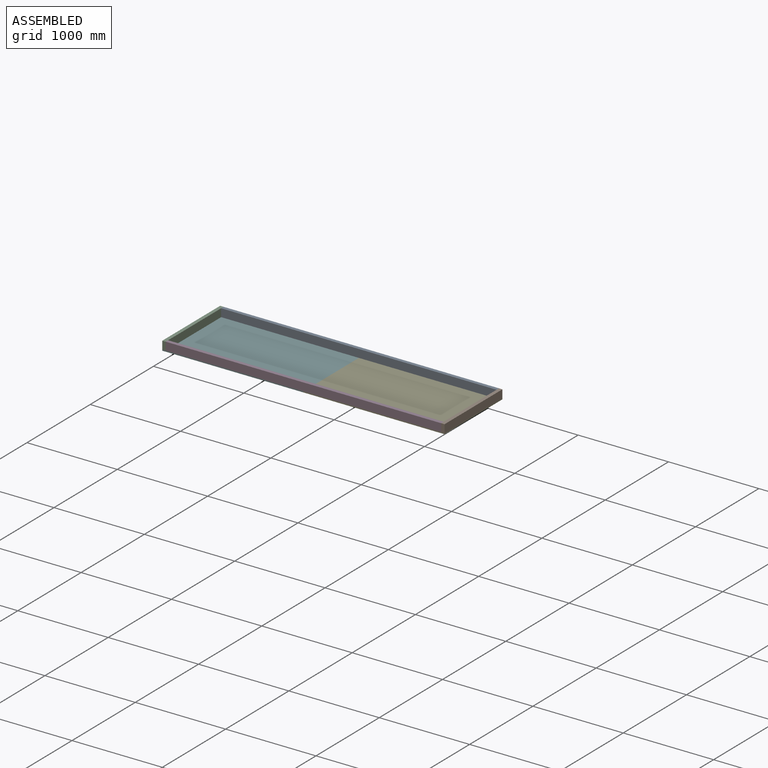
[diagram: assembled view]
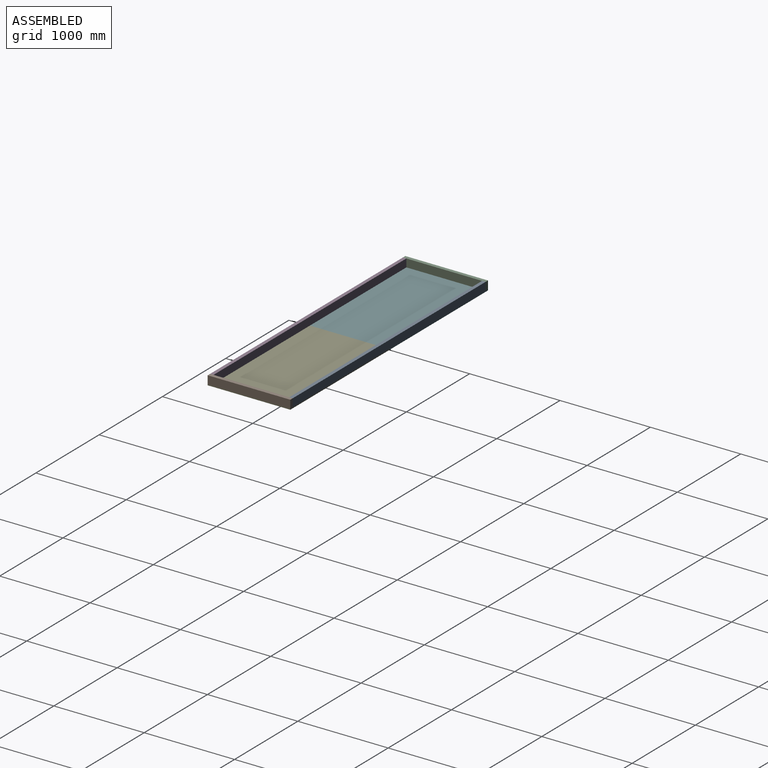
[diagram: assembled view, second angle]
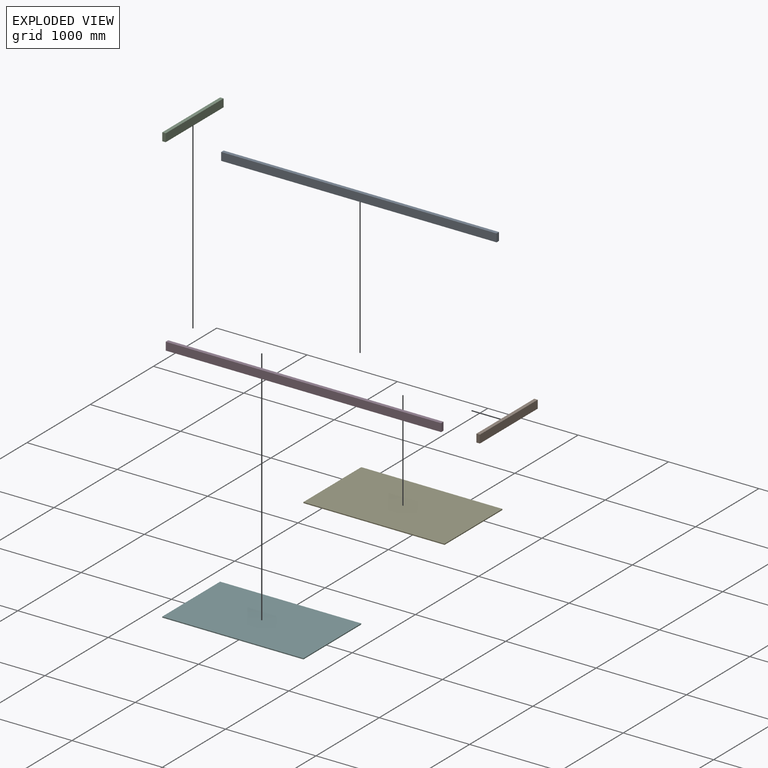
[diagram: exploded view]
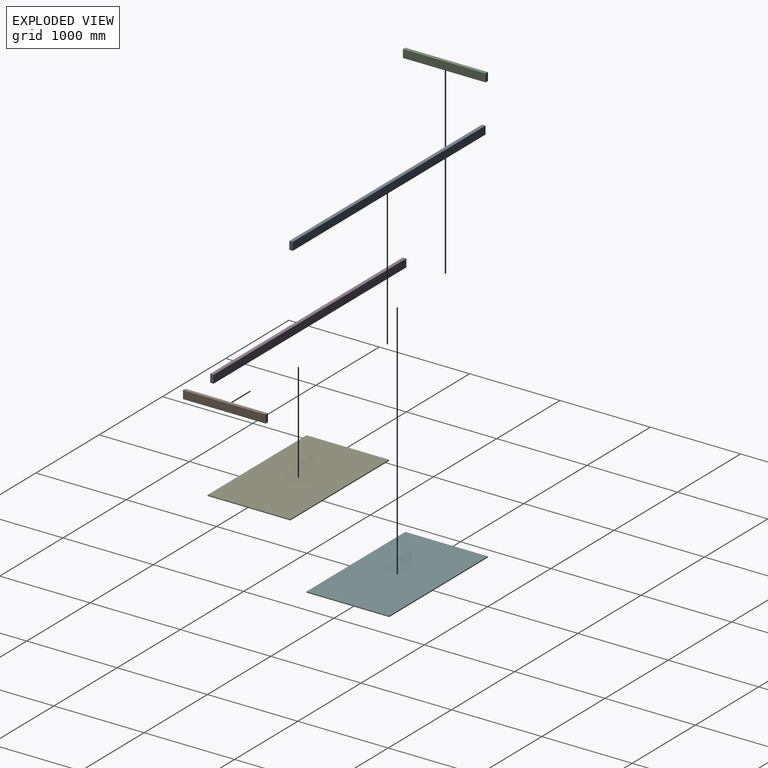
[diagram: exploded view, second angle]
ASSEMBLY  parts=6 mates=15
PART A: 6 faces, bbox 88.9x3048x38.1 mm
  f0: plane 3048x38.1mm, normal (1,0,0), area 116128.8mm2, adj f1,f3,f4,f5
  f1: plane 3048x88.9mm, normal (0,0,1), area 270967.2mm2, adj f0,f2,f4,f5
  f2: plane 3048x38.1mm, normal (-1,0,0), area 116128.8mm2, adj f1,f3,f4,f5
  f3: plane 3048x88.9mm, normal (0,0,-1), area 270967.2mm2, adj f0,f2,f4,f5
  f4: plane 88.9x38.1mm, normal (0,-1,0), area 3387.1mm2, adj f0,f1,f2,f3
  f5: plane 88.9x38.1mm, normal (0,1,0), area 3387.1mm2, adj f0,f1,f2,f3
PART B: 6 faces, bbox 88.9x914.4x38.1 mm
  f0: plane 914.4x38.1mm, normal (1,0,0), area 34838.6mm2, adj f1,f3,f4,f5
  f1: plane 914.4x88.9mm, normal (0,0,1), area 81290.2mm2, adj f0,f2,f4,f5
  f2: plane 914.4x38.1mm, normal (-1,0,0), area 34838.6mm2, adj f1,f3,f4,f5
  f3: plane 914.4x88.9mm, normal (0,0,-1), area 81290.2mm2, adj f0,f2,f4,f5
  f4: plane 88.9x38.1mm, normal (0,-1,0), area 3387.1mm2, adj f0,f1,f2,f3
  f5: plane 88.9x38.1mm, normal (0,1,0), area 3387.1mm2, adj f0,f1,f2,f3
PART C: same geometry as B
PART D: same geometry as A
PART E: 6 faces, bbox 1562.1x914.4x11.1 mm
  f0: plane 914.4x11.11mm, normal (1,0,0), area 10161.3mm2, adj f1,f3,f4,f5
  f1: plane 1562.1x11.11mm, normal (0,1,0), area 17358.8mm2, adj f0,f2,f4,f5
  f2: plane 914.4x11.11mm, normal (-1,0,0), area 10161.3mm2, adj f1,f3,f4,f5
  f3: plane 1562.1x11.11mm, normal (0,-1,0), area 17358.8mm2, adj f0,f2,f4,f5
  f4: plane 1562.1x914.4mm, normal (0,0,1), area 1428384.2mm2, adj f0,f1,f2,f3
  f5: plane 1562.1x914.4mm, normal (0,0,-1), area 1428384.2mm2, adj f0,f1,f2,f3
PART F: same geometry as E
PLACE A rot(axis=(0.58,-0.58,0.58),120deg) t=(-742.95,438.15,55.56)mm
PLACE B rot(axis=(0,-1,0),90deg) t=(2324.1,457.2,55.56)mm
PLACE C rot(axis=(-0.71,0,-0.71),180deg) t=(-762,-457.2,55.56)mm
PLACE D rot(axis=(-0.58,-0.58,-0.58),120deg) t=(2305.05,-438.15,55.56)mm
PLACE E t=(1562.1,0,0)mm
PLACE F at identity
MATE planar C.f2 <-> F.f4  axis (0,0,-1) through (-762,0,11.11)mm
MATE planar B.f2 <-> E.f4  axis (0,0,-1) through (2324.1,0,11.11)mm
MATE planar D.f2 <-> F.f4  axis (0,0,-1) through (781.05,-438.15,11.11)mm
MATE planar E.f2 <-> F.f0  axis (-1,0,0) through (781.05,0,5.56)mm
MATE planar B.f4 <-> D.f3  axis (0,-1,0) through (2324.1,-457.2,55.56)mm
MATE planar A.f5 <-> C.f1  axis (-1,0,0) through (-742.95,438.15,55.56)mm
MATE planar A.f2 <-> F.f4  axis (0,0,-1) through (781.05,438.15,11.11)mm
MATE planar D.f3 <-> E.f3  axis (0,-1,0) through (781.05,-457.2,55.56)mm
MATE planar C.f5 <-> F.f3  axis (0,-1,0) through (-762,-457.2,55.56)mm
MATE planar C.f1 <-> D.f4  axis (1,0,0) through (-742.95,0,55.56)mm
MATE planar E.f4 <-> F.f4  axis (0,0,1) through (1562.1,0,11.11)mm
MATE planar C.f5 <-> D.f3  axis (0,-1,0) through (-762,-457.2,55.56)mm
MATE planar A.f3 <-> F.f1  axis (0,1,0) through (781.05,457.2,55.56)mm
MATE planar C.f3 <-> F.f2  axis (-1,0,0) through (-781.05,0,55.56)mm
MATE planar B.f1 <-> A.f4  axis (-1,0,0) through (2305.05,0,55.56)mm
